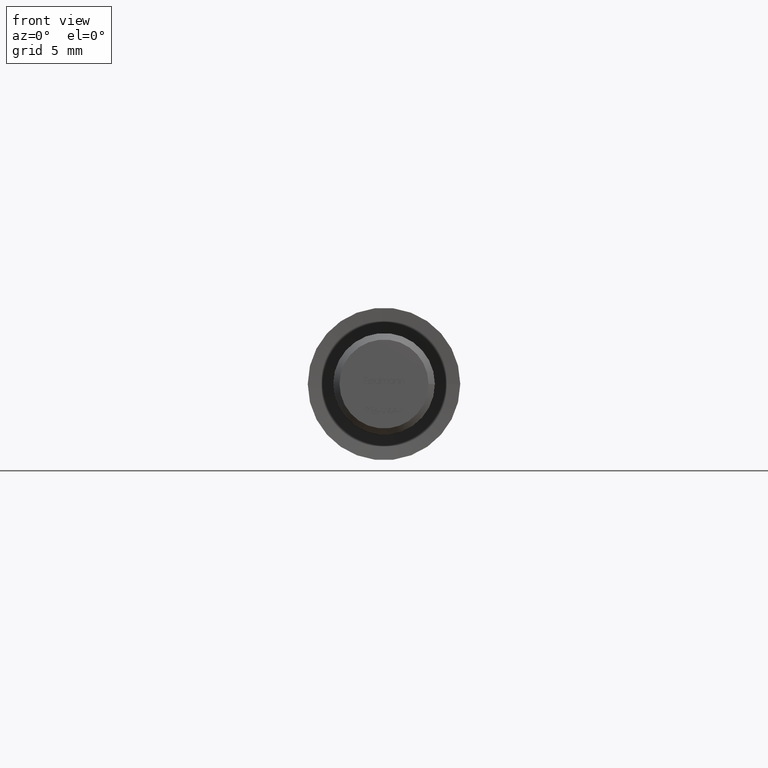
[diagram: clean part render]
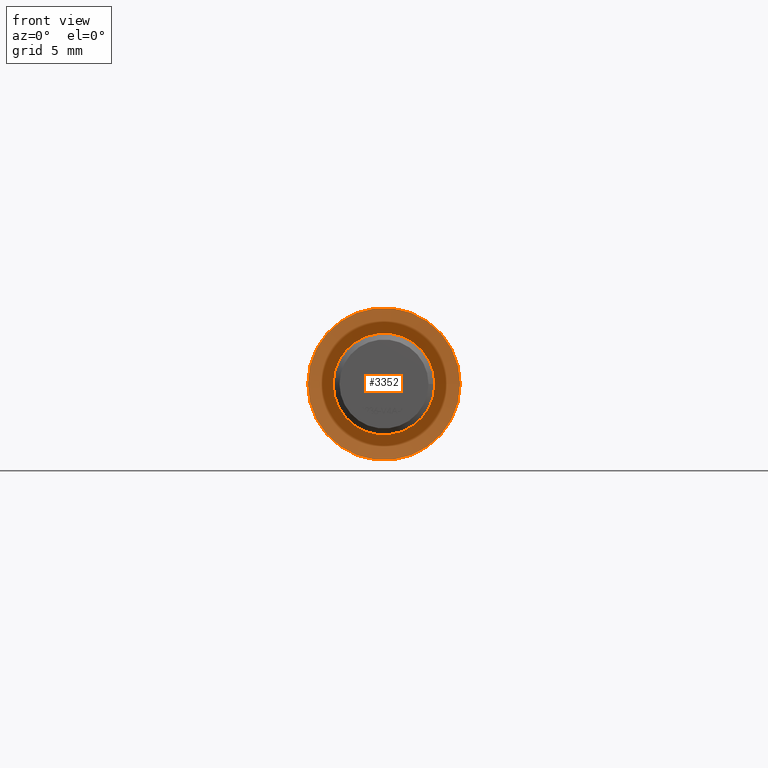
[diagram: same view with one face highlighted and labeled with its STEP entity id]
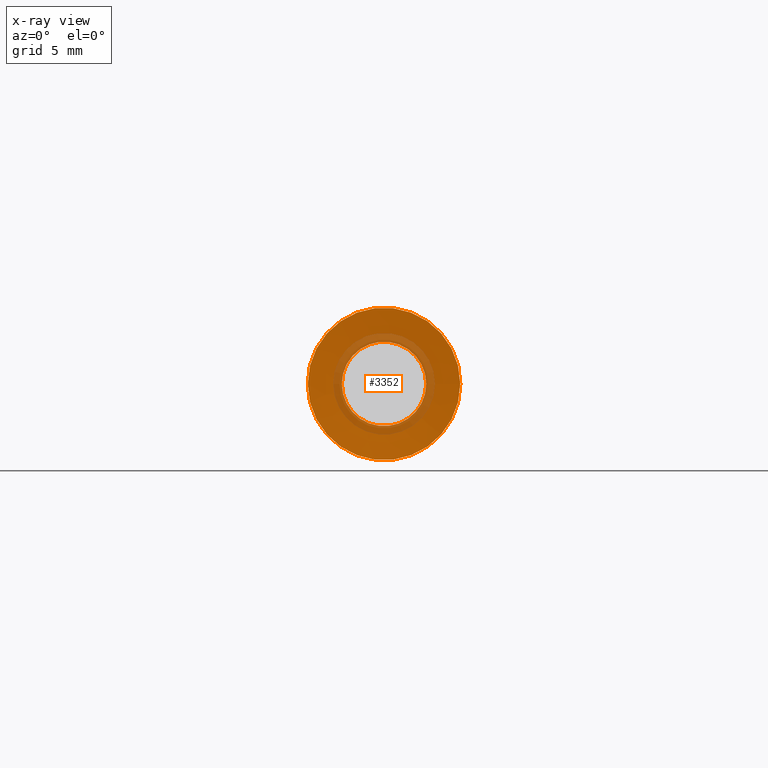
[diagram: x-ray of the same camera — body ghosted, the highlighted face saturated]
A machine part, front view. The second image highlights one B-rep face of the part: STEP entity #3352.
The next image is the same camera in x-ray: the body ghosted, the highlighted face saturated — about 20% of this face is hidden behind the body in this view.
In plain terms, the highlighted conical surface has half-angle 85 deg.
Its self-contained STEP definition (entity closure, byte-faithful):
#461 = DIRECTION ( 'NONE',  ( 1.000000000000000000, 0.000000000000000000, 0.000000000000000000 ) ) ;
#998 = ORIENTED_EDGE ( 'NONE', *, *, #2108, .F. ) ;
#1524 = ORIENTED_EDGE ( 'NONE', *, *, #11401, .T. ) ;
#1940 = AXIS2_PLACEMENT_3D ( 'NONE', #5316, #9478, #8456 ) ;
#2108 = EDGE_CURVE ( 'NONE', #12083, #12083, #5019, .T. ) ;
#2139 = FACE_OUTER_BOUND ( 'NONE', #6744, .T. ) ;
#3352 = ADVANCED_FACE ( 'NONE', ( #2139, #12265 ), #13572, .F. ) ;
#3734 = AXIS2_PLACEMENT_3D ( 'NONE', #10991, #6787, #461 ) ;
#4813 = CARTESIAN_POINT ( 'NONE',  ( 3.320072066050799187, 0.2344633132870081738, 0.000000000000000000 ) ) ;
#5019 = CIRCLE ( 'NONE', #3734, 3.320072066050799187 ) ;
#5316 = CARTESIAN_POINT ( 'NONE',  ( 1.400676323190716944E-31, 0.000000000000000000, 0.000000000000000000 ) ) ;
#5886 = CARTESIAN_POINT ( 'NONE',  ( 6.000000000000009770, 2.101014484786079084E-32, 0.000000000000000000 ) ) ;
#6744 = EDGE_LOOP ( 'NONE', ( #1524 ) ) ;
#6787 = DIRECTION ( 'NONE',  ( 3.501690807976792771E-33, -1.000000000000000000, -0.000000000000000000 ) ) ;
#7550 = AXIS2_PLACEMENT_3D ( 'NONE', #12304, #11149, #12214 ) ;
#8456 = DIRECTION ( 'NONE',  ( 1.000000000000000000, 3.501690807976792771E-33, 0.000000000000000000 ) ) ;
#8664 = CIRCLE ( 'NONE', #1940, 6.000000000000009770 ) ;
#9478 = DIRECTION ( 'NONE',  ( 3.501690807976792771E-33, -1.000000000000000000, -0.000000000000000000 ) ) ;
#9884 = EDGE_LOOP ( 'NONE', ( #998 ) ) ;
#10991 = CARTESIAN_POINT ( 'NONE',  ( 1.392466142901267794E-31, 0.2344633132870081738, 0.000000000000000000 ) ) ;
#11149 = DIRECTION ( 'NONE',  ( 3.501690807976792771E-33, -1.000000000000000000, -0.000000000000000000 ) ) ;
#11401 = EDGE_CURVE ( 'NONE', #12735, #12735, #8664, .T. ) ;
#12083 = VERTEX_POINT ( 'NONE', #4813 ) ;
#12214 = DIRECTION ( 'NONE',  ( 1.000000000000000000, 0.000000000000000000, 0.000000000000000000 ) ) ;
#12265 = FACE_BOUND ( 'NONE', #9884, .T. ) ;
#12304 = CARTESIAN_POINT ( 'NONE',  ( 1.392466142901267794E-31, 0.2344633132870081738, 0.000000000000000000 ) ) ;
#12735 = VERTEX_POINT ( 'NONE', #5886 ) ;
#13572 = CONICAL_SURFACE ( 'NONE', #7550, 3.320072066050799187, 1.483529864195179737 ) ;